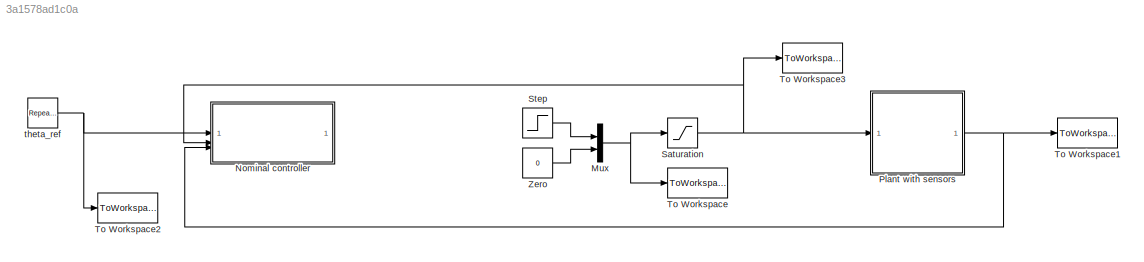
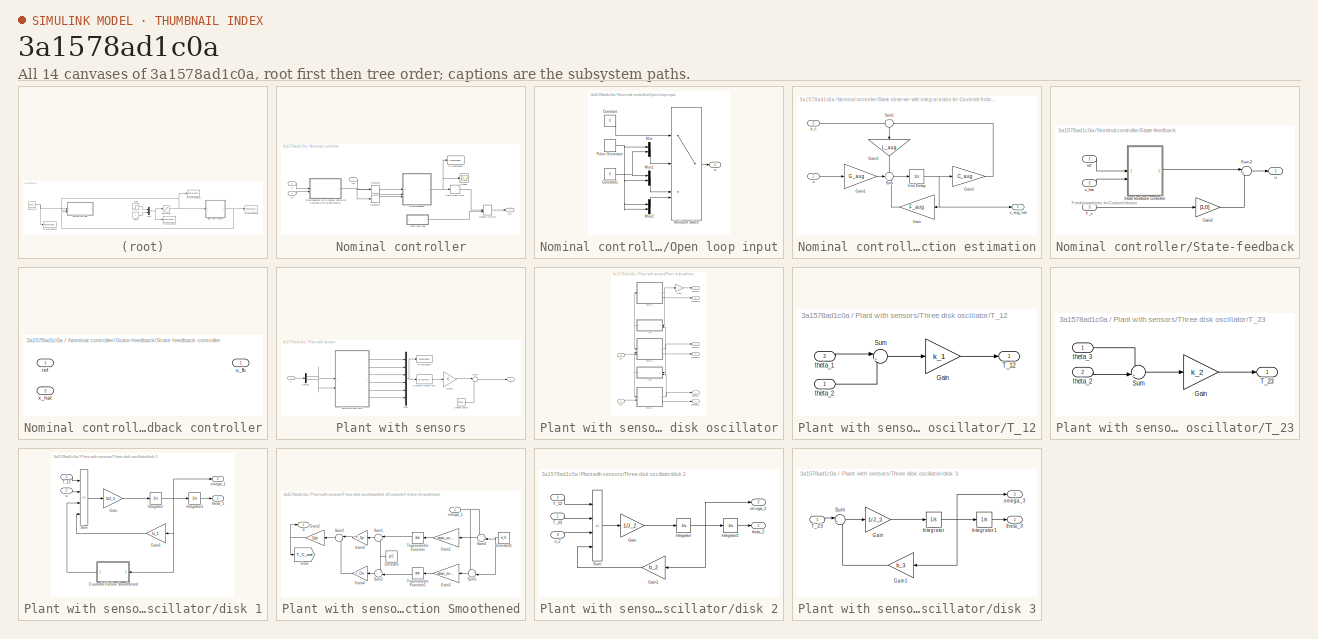
[diagram: thumbnail index - all 14 canvases of the model, root first then tree order]
MODEL slx_3a1578ad1c0a
KIND model
CONFIG AbsTol = auto
CONFIG EnableMultiTasking = off
CONFIG FixedStep = T_s
CONFIG MaxStep = auto
CONFIG MinStep = auto
CONFIG RelTol = 1e-8
CONFIG SampleTimeConstraint = Unconstrained
CONFIG SolverName = ode1be
CONFIG StartTime = 0.0
CONFIG StopTime = simTime
BLOCK [Mux] Mux
  DisplayOption = bar
  Inputs = 2
BLOCK [SubSystem] Nominal controller
  Commented = on
BLOCK [ManualSwitch] Nominal controller/Manual Switch
  CurrentSetting = 0
BLOCK [SubSystem] Nominal controller/Open loop input
BLOCK [Constant] Nominal controller/Open loop input/Constant
  Value = 3
BLOCK [Constant] Nominal controller/Open loop input/Constant1
  Value = 0
BLOCK [MultiPortSwitch] Nominal controller/Open loop input/Multiport Switch
  InputSameDT = off
  SaturateOnIntegerOverflow = off
BLOCK [Mux] Nominal controller/Open loop input/Mux
  DisplayOption = bar
  Inputs = 2
BLOCK [Mux] Nominal controller/Open loop input/Mux1
  DisplayOption = bar
  Inputs = 2
BLOCK [Mux] Nominal controller/Open loop input/Mux2
  DisplayOption = bar
  Inputs = 2
BLOCK [DiscretePulseGenerator] Nominal controller/Open loop input/Pulse Generator
  Period = 10
  PulseType = Time based
  PulseWidth = 5
BLOCK [Outport] Nominal controller/Open loop input/u
BLOCK [Scope] Nominal controller/Scope
  Floating = off
  NumInputPorts = 1
  ScopeSpecificationString = Simulink.scopes.TimeScopeBlockCfg('CurrentConfiguration', extmgr.ConfigurationSet(extmgr.Configuration('Core','General UI',true),extmgr.Configuration('Core','Source UI',true),extmgr.Configuration('Sources','WiredSimulink',true,'DataLoggingVariableName','ScopeData1'),extmgr.Configuration('Visuals','Time Domain',true,'SerializedDisplays',{struct('MinYLimReal','-1.51308','MaxYLimReal','1.51292','YLab...<+1479ch>
BLOCK [Selector] Nominal controller/Selector
  IndexOptions = Index vector (dialog)
  Indices = [1:6]
  InputPortWidth = 7
  OutputSizes = 1
BLOCK [Selector] Nominal controller/Selector1
  IndexOptions = Index vector (dialog)
  Indices = [7]
  InputPortWidth = 7
  OutputSizes = 1
BLOCK [SubSystem] Nominal controller/State observer with integral action for Coulomb friction estimation
BLOCK [Gain] Nominal controller/State observer with integral action for Coulomb friction estimation/Gain
  Gain = F_aug
  Multiplication = Matrix(K*u) (u vector)
BLOCK [Gain] Nominal controller/State observer with integral action for Coulomb friction estimation/Gain1
  Gain = G_aug
  Multiplication = Matrix(K*u) (u vector)
BLOCK [Gain] Nominal controller/State observer with integral action for Coulomb friction estimation/Gain2
  Gain = C_aug
  Multiplication = Matrix(K*u) (u vector)
BLOCK [Gain] Nominal controller/State observer with integral action for Coulomb friction estimation/Gain3
  Gain = L_aug
  Multiplication = Matrix(K*u) (u vector)
  NameLocation = left
BLOCK [Sum] Nominal controller/State observer with integral action for Coulomb friction estimation/Sum
  Inputs = +++
BLOCK [Sum] Nominal controller/State observer with integral action for Coulomb friction estimation/Sum1
  Inputs = +-
  NameLocation = left
BLOCK [UnitDelay] Nominal controller/State observer with integral action for Coulomb friction estimation/Unit Delay
  HasFrameUpgradeWarning = on
  SampleTime = T_s
BLOCK [Inport] Nominal controller/State observer with integral action for Coulomb friction estimation/u
BLOCK [Outport] Nominal controller/State observer with integral action for Coulomb friction estimation/x_aug_hat
  VectorParamsAs1DForOutWhenUnconnected = off
BLOCK [Inport] Nominal controller/State observer with integral action for Coulomb friction estimation/y_c
  Port = 2
BLOCK [SubSystem] Nominal controller/State-feedback
BLOCK [Gain] Nominal controller/State-feedback/Gain2
  Gain = [1;0]
  NameLocation = top
BLOCK [SubSystem] Nominal controller/State-feedback/State feedback controller
BLOCK [Inport] Nominal controller/State-feedback/State feedback controller/ref
BLOCK [Outport] Nominal controller/State-feedback/State feedback controller/u_fb
BLOCK [Inport] Nominal controller/State-feedback/State feedback controller/x_hat
  Port = 2
BLOCK [Sum] Nominal controller/State-feedback/Sum2
  Inputs = |+-
BLOCK [Inport] Nominal controller/State-feedback/T_c
  Port = 3
BLOCK [Inport] Nominal controller/State-feedback/ref
BLOCK [Outport] Nominal controller/State-feedback/u
  VectorParamsAs1DForOutWhenUnconnected = off
BLOCK [Inport] Nominal controller/State-feedback/x_hat
  Port = 2
BLOCK [ToWorkspace] Nominal controller/To Workspace
  FixptAsFi = on
  MaxDataPoints = inf
  SampleTime = T_s
  SaveFormat = Timeseries
  VariableName = u
BLOCK [ZeroOrderHold] Nominal controller/Zero-Order Hold
  SampleTime = T_s
BLOCK [Inport] Nominal controller/ref
BLOCK [Inport] Nominal controller/u
  Port = 2
BLOCK [Outport] Nominal controller/u_c
BLOCK [Inport] Nominal controller/y_c
  Port = 3
BLOCK [SubSystem] Plant with sensors
BLOCK [Demux] Plant with sensors/Demux
  Outputs = 2
BLOCK [DiscreteTransferFcn] Plant with sensors/Discrete Transfer Fcn
  Denominator = [1]
  InputPortMap = u0
  SampleTime = T_s
BLOCK [Gain] Plant with sensors/Gain2
  Gain = C
  Multiplication = Matrix(K*u) (u vector)
BLOCK [Mux] Plant with sensors/Mux
  DisplayOption = bar
  Inputs = 6
BLOCK [RandomNumber] Plant with sensors/Sensor noise
  Mean = zeros(3,1)
  SampleTime = T_s
  Variance = diag(sigma_meas^2)
BLOCK [Sum] Plant with sensors/Sum4
  Inputs = |++
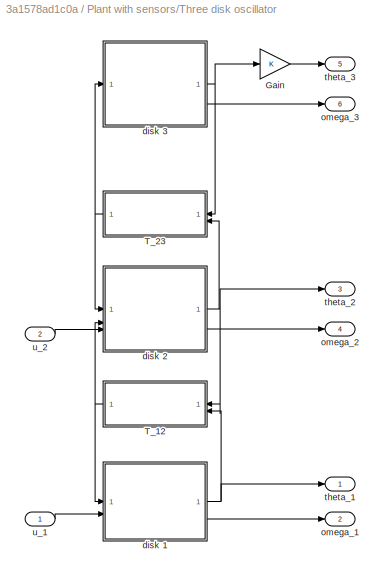
BLOCK [SubSystem] Plant with sensors/Three disk oscillator
BLOCK [Gain] Plant with sensors/Three disk oscillator/Gain
BLOCK [SubSystem] Plant with sensors/Three disk oscillator/T_12
BLOCK [Gain] Plant with sensors/Three disk oscillator/T_12/Gain
  Gain = k_1
BLOCK [Sum] Plant with sensors/Three disk oscillator/T_12/Sum
  Inputs = |+-
BLOCK [Outport] Plant with sensors/Three disk oscillator/T_12/T_12
  VectorParamsAs1DForOutWhenUnconnected = off
BLOCK [Inport] Plant with sensors/Three disk oscillator/T_12/theta_1
  Port = 2
BLOCK [Inport] Plant with sensors/Three disk oscillator/T_12/theta_2
BLOCK [SubSystem] Plant with sensors/Three disk oscillator/T_23
BLOCK [Gain] Plant with sensors/Three disk oscillator/T_23/Gain
  Gain = k_2
BLOCK [Sum] Plant with sensors/Three disk oscillator/T_23/Sum
  Inputs = -+|
BLOCK [Outport] Plant with sensors/Three disk oscillator/T_23/T_23
  VectorParamsAs1DForOutWhenUnconnected = off
BLOCK [Inport] Plant with sensors/Three disk oscillator/T_23/theta_2
  Port = 2
BLOCK [Inport] Plant with sensors/Three disk oscillator/T_23/theta_3
BLOCK [SubSystem] Plant with sensors/Three disk oscillator/disk 1
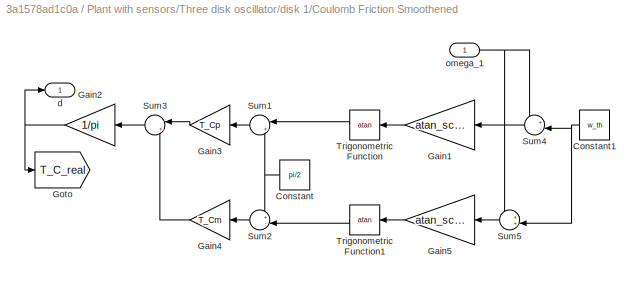
BLOCK [SubSystem] Plant with sensors/Three disk oscillator/disk 1/Coulomb Friction Smoothened
BLOCK [Constant] Plant with sensors/Three disk oscillator/disk 1/Coulomb Friction Smoothened/Constant
  Value = pi/2
BLOCK [Constant] Plant with sensors/Three disk oscillator/disk 1/Coulomb Friction Smoothened/Constant1
  Value = w_th
BLOCK [Gain] Plant with sensors/Three disk oscillator/disk 1/Coulomb Friction Smoothened/Gain1
  Gain = atan_scale
BLOCK [Gain] Plant with sensors/Three disk oscillator/disk 1/Coulomb Friction Smoothened/Gain2
  Gain = 1/pi
BLOCK [Gain] Plant with sensors/Three disk oscillator/disk 1/Coulomb Friction Smoothened/Gain3
  Gain = T_Cp
BLOCK [Gain] Plant with sensors/Three disk oscillator/disk 1/Coulomb Friction Smoothened/Gain4
  Gain = T_Cm
BLOCK [Gain] Plant with sensors/Three disk oscillator/disk 1/Coulomb Friction Smoothened/Gain5
  Gain = atan_scale
BLOCK [Goto] Plant with sensors/Three disk oscillator/disk 1/Coulomb Friction Smoothened/Goto
  GotoTag = T_C_real
  TagVisibility = global
BLOCK [Sum] Plant with sensors/Three disk oscillator/disk 1/Coulomb Friction Smoothened/Sum1
  Inputs = |++
BLOCK [Sum] Plant with sensors/Three disk oscillator/disk 1/Coulomb Friction Smoothened/Sum2
  Inputs = +-|
BLOCK [Sum] Plant with sensors/Three disk oscillator/disk 1/Coulomb Friction Smoothened/Sum3
  Inputs = |+-
BLOCK [Sum] Plant with sensors/Three disk oscillator/disk 1/Coulomb Friction Smoothened/Sum4
  Inputs = +-|
BLOCK [Sum] Plant with sensors/Three disk oscillator/disk 1/Coulomb Friction Smoothened/Sum5
  Inputs = ++|
BLOCK [Trigonometry] Plant with sensors/Three disk oscillator/disk 1/Coulomb Friction Smoothened/Trigonometric Function
  Operator = atan
BLOCK [Trigonometry] Plant with sensors/Three disk oscillator/disk 1/Coulomb Friction Smoothened/Trigonometric Function1
  Operator = atan
BLOCK [Outport] Plant with sensors/Three disk oscillator/disk 1/Coulomb Friction Smoothened/d
  VectorParamsAs1DForOutWhenUnconnected = off
BLOCK [Inport] Plant with sensors/Three disk oscillator/disk 1/Coulomb Friction Smoothened/omega_1
BLOCK [Gain] Plant with sensors/Three disk oscillator/disk 1/Gain
  Gain = 1/J_1
BLOCK [Gain] Plant with sensors/Three disk oscillator/disk 1/Gain1
  Gain = b_1
BLOCK [Integrator] Plant with sensors/Three disk oscillator/disk 1/Integrator
  InitialCondition = x_0(2)
BLOCK [Integrator] Plant with sensors/Three disk oscillator/disk 1/Integrator1
  InitialCondition = x_0(1)
BLOCK [Sum] Plant with sensors/Three disk oscillator/disk 1/Sum
  IconShape = rectangular
  Inputs = -+--
BLOCK [Inport] Plant with sensors/Three disk oscillator/disk 1/T_12
BLOCK [Outport] Plant with sensors/Three disk oscillator/disk 1/omega_1
  Port = 2
  VectorParamsAs1DForOutWhenUnconnected = off
BLOCK [Outport] Plant with sensors/Three disk oscillator/disk 1/theta_1
  VectorParamsAs1DForOutWhenUnconnected = off
BLOCK [Inport] Plant with sensors/Three disk oscillator/disk 1/u
  Port = 2
BLOCK [SubSystem] Plant with sensors/Three disk oscillator/disk 2
BLOCK [Gain] Plant with sensors/Three disk oscillator/disk 2/Gain
  Gain = 1/J_2
BLOCK [Gain] Plant with sensors/Three disk oscillator/disk 2/Gain1
  Gain = b_2
BLOCK [Integrator] Plant with sensors/Three disk oscillator/disk 2/Integrator
  InitialCondition = x_0(4)
BLOCK [Integrator] Plant with sensors/Three disk oscillator/disk 2/Integrator1
  InitialCondition = x_0(3)
BLOCK [Sum] Plant with sensors/Three disk oscillator/disk 2/Sum
  IconShape = rectangular
  Inputs = +-+-
BLOCK [Inport] Plant with sensors/Three disk oscillator/disk 2/T_12
  Port = 2
BLOCK [Inport] Plant with sensors/Three disk oscillator/disk 2/T_23
BLOCK [Outport] Plant with sensors/Three disk oscillator/disk 2/omega_2
  Port = 2
  VectorParamsAs1DForOutWhenUnconnected = off
BLOCK [Outport] Plant with sensors/Three disk oscillator/disk 2/theta_2
  VectorParamsAs1DForOutWhenUnconnected = off
BLOCK [Inport] Plant with sensors/Three disk oscillator/disk 2/u_2
  Port = 3
BLOCK [SubSystem] Plant with sensors/Three disk oscillator/disk 3
BLOCK [Gain] Plant with sensors/Three disk oscillator/disk 3/Gain
  Gain = 1/J_3
BLOCK [Gain] Plant with sensors/Three disk oscillator/disk 3/Gain1
  Gain = b_3
BLOCK [Integrator] Plant with sensors/Three disk oscillator/disk 3/Integrator
  InitialCondition = x_0(6)
BLOCK [Integrator] Plant with sensors/Three disk oscillator/disk 3/Integrator1
  InitialCondition = x_0(5)
BLOCK [Sum] Plant with sensors/Three disk oscillator/disk 3/Sum
  Inputs = |+-
BLOCK [Inport] Plant with sensors/Three disk oscillator/disk 3/T_23
BLOCK [Outport] Plant with sensors/Three disk oscillator/disk 3/omega_3
  Port = 2
  VectorParamsAs1DForOutWhenUnconnected = off
BLOCK [Outport] Plant with sensors/Three disk oscillator/disk 3/theta_3
  VectorParamsAs1DForOutWhenUnconnected = off
BLOCK [Outport] Plant with sensors/Three disk oscillator/omega_1
  Port = 2
  VectorParamsAs1DForOutWhenUnconnected = off
BLOCK [Outport] Plant with sensors/Three disk oscillator/omega_2
  Port = 4
  VectorParamsAs1DForOutWhenUnconnected = off
BLOCK [Outport] Plant with sensors/Three disk oscillator/omega_3
  Port = 6
  VectorParamsAs1DForOutWhenUnconnected = off
BLOCK [Outport] Plant with sensors/Three disk oscillator/theta_1
  VectorParamsAs1DForOutWhenUnconnected = off
BLOCK [Outport] Plant with sensors/Three disk oscillator/theta_2
  Port = 3
  VectorParamsAs1DForOutWhenUnconnected = off
BLOCK [Outport] Plant with sensors/Three disk oscillator/theta_3
  Port = 5
  VectorParamsAs1DForOutWhenUnconnected = off
BLOCK [Inport] Plant with sensors/Three disk oscillator/u_1
BLOCK [Inport] Plant with sensors/Three disk oscillator/u_2
  Port = 2
BLOCK [ToWorkspace] Plant with sensors/To Workspace
  FixptAsFi = on
  MaxDataPoints = inf
  SampleTime = T_s
  SaveFormat = Timeseries
  VariableName = x_real
BLOCK [Inport] Plant with sensors/u
BLOCK [Outport] Plant with sensors/y
  VectorParamsAs1DForOutWhenUnconnected = off
BLOCK [Saturate] Saturation
  LowerLimit = -2
  UpperLimit = 2
BLOCK [Step] Step
  SampleTime = T_s
  Time = 0.0001
BLOCK [ToWorkspace] To Workspace
  FixptAsFi = on
  MaxDataPoints = inf
  SampleTime = T_s
  VariableName = u
BLOCK [ToWorkspace] To Workspace1
  FixptAsFi = on
  MaxDataPoints = inf
  SampleTime = T_s
  VariableName = y
BLOCK [ToWorkspace] To Workspace2
  FixptAsFi = on
  MaxDataPoints = inf
  SampleTime = T_s
  VariableName = theta_ref
BLOCK [ToWorkspace] To Workspace3
  FixptAsFi = on
  MaxDataPoints = inf
  SampleTime = T_s
  VariableName = u_sat
BLOCK [Constant] Zero
  OutDataTypeStr = Inherit: Inherit via back propagation
  Value = 0
BLOCK [Reference] theta_ref  REF=simulink/Sources/Repeating
Sequence
Stair
  SourceBlock = simulink/Sources/Repeating\nSequence\nStair
  SourceType = Repeating Sequence Stair
ANNOTATION Nominal controller/State-feedback: Feed-forward term for Coulomb friction
NET Mux:1 -> Saturation:1, To Workspace:1
LINE Nominal controller/Manual Switch:1 -> Nominal controller/u_c:1
NET Nominal controller/Open loop input/Constant1:1 -> Nominal controller/Open loop input/Mux1:1, Nominal controller/Open loop input/Mux:2
LINE Nominal controller/Open loop input/Constant:1 -> Nominal controller/Open loop input/Multiport Switch:1
LINE Nominal controller/Open loop input/Multiport Switch:1 -> Nominal controller/Open loop input/u:1
LINE Nominal controller/Open loop input/Mux1:1 -> Nominal controller/Open loop input/Multiport Switch:3
LINE Nominal controller/Open loop input/Mux2:1 -> Nominal controller/Open loop input/Multiport Switch:4
LINE Nominal controller/Open loop input/Mux:1 -> Nominal controller/Open loop input/Multiport Switch:2
NET Nominal controller/Open loop input/Pulse Generator:1 -> Nominal controller/Open loop input/Mux1:2, Nominal controller/Open loop input/Mux2:1, Nominal controller/Open loop input/Mux2:2, Nominal controller/Open loop input/Mux:1
LINE Nominal controller/Open loop input:1 -> Nominal controller/Manual Switch:2
LINE Nominal controller/Selector1:1 -> Nominal controller/State-feedback:3
LINE Nominal controller/Selector:1 -> Nominal controller/State-feedback:2
LINE Nominal controller/State observer with integral action for Coulomb friction estimation/Gain1:1 -> Nominal controller/State observer with integral action for Coulomb friction estimation/Sum:2
LINE Nominal controller/State observer with integral action for Coulomb friction estimation/Gain2:1 -> Nominal controller/State observer with integral action for Coulomb friction estimation/Sum1:2
LINE Nominal controller/State observer with integral action for Coulomb friction estimation/Gain3:1 -> Nominal controller/State observer with integral action for Coulomb friction estimation/Sum:1
LINE Nominal controller/State observer with integral action for Coulomb friction estimation/Gain:1 -> Nominal controller/State observer with integral action for Coulomb friction estimation/Sum:3
LINE Nominal controller/State observer with integral action for Coulomb friction estimation/Sum1:1 -> Nominal controller/State observer with integral action for Coulomb friction estimation/Gain3:1
LINE Nominal controller/State observer with integral action for Coulomb friction estimation/Sum:1 -> Nominal controller/State observer with integral action for Coulomb friction estimation/Unit Delay:1
NET Nominal controller/State observer with integral action for Coulomb friction estimation/Unit Delay:1 -> Nominal controller/State observer with integral action for Coulomb friction estimation/Gain2:1, Nominal controller/State observer with integral action for Coulomb friction estimation/Gain:1, Nominal controller/State observer with integral action for Coulomb friction estimation/x_aug_hat:1
LINE Nominal controller/State observer with integral action for Coulomb friction estimation/u:1 -> Nominal controller/State observer with integral action for Coulomb friction estimation/Gain1:1
LINE Nominal controller/State observer with integral action for Coulomb friction estimation/y_c:1 -> Nominal controller/State observer with integral action for Coulomb friction estimation/Sum1:1
NET Nominal controller/State observer with integral action for Coulomb friction estimation:1 -> Nominal controller/Selector1:1, Nominal controller/Selector:1
LINE Nominal controller/State-feedback/Gain2:1 -> Nominal controller/State-feedback/Sum2:2
LINE Nominal controller/State-feedback/State feedback controller:1 -> Nominal controller/State-feedback/Sum2:1
LINE Nominal controller/State-feedback/Sum2:1 -> Nominal controller/State-feedback/u:1
LINE Nominal controller/State-feedback/T_c:1 -> Nominal controller/State-feedback/Gain2:1
LINE Nominal controller/State-feedback/ref:1 -> Nominal controller/State-feedback/State feedback controller:1
LINE Nominal controller/State-feedback/x_hat:1 -> Nominal controller/State-feedback/State feedback controller:2
NET Nominal controller/State-feedback:1 -> Nominal controller/Scope:1, Nominal controller/To Workspace:1, Nominal controller/Zero-Order Hold:1
LINE Nominal controller/Zero-Order Hold:1 -> Nominal controller/Manual Switch:1
LINE Nominal controller/ref:1 -> Nominal controller/State-feedback:1
LINE Nominal controller/u:1 -> Nominal controller/State observer with integral action for Coulomb friction estimation:1
LINE Nominal controller/y_c:1 -> Nominal controller/State observer with integral action for Coulomb friction estimation:2
LINE Plant with sensors/Demux:1 -> Plant with sensors/Three disk oscillator:1
LINE Plant with sensors/Demux:2 -> Plant with sensors/Three disk oscillator:2
LINE Plant with sensors/Discrete Transfer Fcn:1 -> Plant with sensors/Gain2:1
LINE Plant with sensors/Gain2:1 -> Plant with sensors/Sum4:1
NET Plant with sensors/Mux:1 -> Plant with sensors/Discrete Transfer Fcn:1, Plant with sensors/To Workspace:1
LINE Plant with sensors/Sensor noise:1 -> Plant with sensors/Sum4:2
LINE Plant with sensors/Sum4:1 -> Plant with sensors/y:1
LINE Plant with sensors/Three disk oscillator/Gain:1 -> Plant with sensors/Three disk oscillator/theta_3:1
LINE Plant with sensors/Three disk oscillator/T_12/Gain:1 -> Plant with sensors/Three disk oscillator/T_12/T_12:1
LINE Plant with sensors/Three disk oscillator/T_12/Sum:1 -> Plant with sensors/Three disk oscillator/T_12/Gain:1
LINE Plant with sensors/Three disk oscillator/T_12/theta_1:1 -> Plant with sensors/Three disk oscillator/T_12/Sum:1
LINE Plant with sensors/Three disk oscillator/T_12/theta_2:1 -> Plant with sensors/Three disk oscillator/T_12/Sum:2
NET Plant with sensors/Three disk oscillator/T_12:1 -> Plant with sensors/Three disk oscillator/disk 1:1, Plant with sensors/Three disk oscillator/disk 2:2
LINE Plant with sensors/Three disk oscillator/T_23/Gain:1 -> Plant with sensors/Three disk oscillator/T_23/T_23:1
LINE Plant with sensors/Three disk oscillator/T_23/Sum:1 -> Plant with sensors/Three disk oscillator/T_23/Gain:1
LINE Plant with sensors/Three disk oscillator/T_23/theta_2:1 -> Plant with sensors/Three disk oscillator/T_23/Sum:2
LINE Plant with sensors/Three disk oscillator/T_23/theta_3:1 -> Plant with sensors/Three disk oscillator/T_23/Sum:1
NET Plant with sensors/Three disk oscillator/T_23:1 -> Plant with sensors/Three disk oscillator/disk 2:1, Plant with sensors/Three disk oscillator/disk 3:1
NET Plant with sensors/Three disk oscillator/disk 1/Coulomb Friction Smoothened/Constant1:1 -> Plant with sensors/Three disk oscillator/disk 1/Coulomb Friction Smoothened/Sum4:2, Plant with sensors/Three disk oscillator/disk 1/Coulomb Friction Smoothened/Sum5:2
NET Plant with sensors/Three disk oscillator/disk 1/Coulomb Friction Smoothened/Constant:1 -> Plant with sensors/Three disk oscillator/disk 1/Coulomb Friction Smoothened/Sum1:2, Plant with sensors/Three disk oscillator/disk 1/Coulomb Friction Smoothened/Sum2:1
LINE Plant with sensors/Three disk oscillator/disk 1/Coulomb Friction Smoothened/Gain1:1 -> Plant with sensors/Three disk oscillator/disk 1/Coulomb Friction Smoothened/Trigonometric Function:1
NET Plant with sensors/Three disk oscillator/disk 1/Coulomb Friction Smoothened/Gain2:1 -> Plant with sensors/Three disk oscillator/disk 1/Coulomb Friction Smoothened/Goto:1, Plant with sensors/Three disk oscillator/disk 1/Coulomb Friction Smoothened/d:1
LINE Plant with sensors/Three disk oscillator/disk 1/Coulomb Friction Smoothened/Gain3:1 -> Plant with sensors/Three disk oscillator/disk 1/Coulomb Friction Smoothened/Sum3:1
LINE Plant with sensors/Three disk oscillator/disk 1/Coulomb Friction Smoothened/Gain4:1 -> Plant with sensors/Three disk oscillator/disk 1/Coulomb Friction Smoothened/Sum3:2
LINE Plant with sensors/Three disk oscillator/disk 1/Coulomb Friction Smoothened/Gain5:1 -> Plant with sensors/Three disk oscillator/disk 1/Coulomb Friction Smoothened/Trigonometric Function1:1
LINE Plant with sensors/Three disk oscillator/disk 1/Coulomb Friction Smoothened/Sum1:1 -> Plant with sensors/Three disk oscillator/disk 1/Coulomb Friction Smoothened/Gain3:1
LINE Plant with sensors/Three disk oscillator/disk 1/Coulomb Friction Smoothened/Sum2:1 -> Plant with sensors/Three disk oscillator/disk 1/Coulomb Friction Smoothened/Gain4:1
LINE Plant with sensors/Three disk oscillator/disk 1/Coulomb Friction Smoothened/Sum3:1 -> Plant with sensors/Three disk oscillator/disk 1/Coulomb Friction Smoothened/Gain2:1
LINE Plant with sensors/Three disk oscillator/disk 1/Coulomb Friction Smoothened/Sum4:1 -> Plant with sensors/Three disk oscillator/disk 1/Coulomb Friction Smoothened/Gain1:1
LINE Plant with sensors/Three disk oscillator/disk 1/Coulomb Friction Smoothened/Sum5:1 -> Plant with sensors/Three disk oscillator/disk 1/Coulomb Friction Smoothened/Gain5:1
LINE Plant with sensors/Three disk oscillator/disk 1/Coulomb Friction Smoothened/Trigonometric Function1:1 -> Plant with sensors/Three disk oscillator/disk 1/Coulomb Friction Smoothened/Sum2:2
LINE Plant with sensors/Three disk oscillator/disk 1/Coulomb Friction Smoothened/Trigonometric Function:1 -> Plant with sensors/Three disk oscillator/disk 1/Coulomb Friction Smoothened/Sum1:1
NET Plant with sensors/Three disk oscillator/disk 1/Coulomb Friction Smoothened/omega_1:1 -> Plant with sensors/Three disk oscillator/disk 1/Coulomb Friction Smoothened/Sum4:1, Plant with sensors/Three disk oscillator/disk 1/Coulomb Friction Smoothened/Sum5:1
LINE Plant with sensors/Three disk oscillator/disk 1/Coulomb Friction Smoothened:1 -> Plant with sensors/Three disk oscillator/disk 1/Sum:3
LINE Plant with sensors/Three disk oscillator/disk 1/Gain1:1 -> Plant with sensors/Three disk oscillator/disk 1/Sum:4
LINE Plant with sensors/Three disk oscillator/disk 1/Gain:1 -> Plant with sensors/Three disk oscillator/disk 1/Integrator:1
LINE Plant with sensors/Three disk oscillator/disk 1/Integrator1:1 -> Plant with sensors/Three disk oscillator/disk 1/theta_1:1
NET Plant with sensors/Three disk oscillator/disk 1/Integrator:1 -> Plant with sensors/Three disk oscillator/disk 1/Coulomb Friction Smoothened:1, Plant with sensors/Three disk oscillator/disk 1/Gain1:1, Plant with sensors/Three disk oscillator/disk 1/Integrator1:1, Plant with sensors/Three disk oscillator/disk 1/omega_1:1
LINE Plant with sensors/Three disk oscillator/disk 1/Sum:1 -> Plant with sensors/Three disk oscillator/disk 1/Gain:1
LINE Plant with sensors/Three disk oscillator/disk 1/T_12:1 -> Plant with sensors/Three disk oscillator/disk 1/Sum:1
LINE Plant with sensors/Three disk oscillator/disk 1/u:1 -> Plant with sensors/Three disk oscillator/disk 1/Sum:2
NET Plant with sensors/Three disk oscillator/disk 1:1 -> Plant with sensors/Three disk oscillator/T_12:2, Plant with sensors/Three disk oscillator/theta_1:1
LINE Plant with sensors/Three disk oscillator/disk 1:2 -> Plant with sensors/Three disk oscillator/omega_1:1
LINE Plant with sensors/Three disk oscillator/disk 2/Gain1:1 -> Plant with sensors/Three disk oscillator/disk 2/Sum:4
LINE Plant with sensors/Three disk oscillator/disk 2/Gain:1 -> Plant with sensors/Three disk oscillator/disk 2/Integrator:1
LINE Plant with sensors/Three disk oscillator/disk 2/Integrator1:1 -> Plant with sensors/Three disk oscillator/disk 2/theta_2:1
NET Plant with sensors/Three disk oscillator/disk 2/Integrator:1 -> Plant with sensors/Three disk oscillator/disk 2/Gain1:1, Plant with sensors/Three disk oscillator/disk 2/Integrator1:1, Plant with sensors/Three disk oscillator/disk 2/omega_2:1
LINE Plant with sensors/Three disk oscillator/disk 2/Sum:1 -> Plant with sensors/Three disk oscillator/disk 2/Gain:1
LINE Plant with sensors/Three disk oscillator/disk 2/T_12:1 -> Plant with sensors/Three disk oscillator/disk 2/Sum:1
LINE Plant with sensors/Three disk oscillator/disk 2/T_23:1 -> Plant with sensors/Three disk oscillator/disk 2/Sum:2
LINE Plant with sensors/Three disk oscillator/disk 2/u_2:1 -> Plant with sensors/Three disk oscillator/disk 2/Sum:3
NET Plant with sensors/Three disk oscillator/disk 2:1 -> Plant with sensors/Three disk oscillator/T_12:1, Plant with sensors/Three disk oscillator/T_23:2, Plant with sensors/Three disk oscillator/theta_2:1
LINE Plant with sensors/Three disk oscillator/disk 2:2 -> Plant with sensors/Three disk oscillator/omega_2:1
LINE Plant with sensors/Three disk oscillator/disk 3/Gain1:1 -> Plant with sensors/Three disk oscillator/disk 3/Sum:2
LINE Plant with sensors/Three disk oscillator/disk 3/Gain:1 -> Plant with sensors/Three disk oscillator/disk 3/Integrator:1
LINE Plant with sensors/Three disk oscillator/disk 3/Integrator1:1 -> Plant with sensors/Three disk oscillator/disk 3/theta_3:1
NET Plant with sensors/Three disk oscillator/disk 3/Integrator:1 -> Plant with sensors/Three disk oscillator/disk 3/Gain1:1, Plant with sensors/Three disk oscillator/disk 3/Integrator1:1, Plant with sensors/Three disk oscillator/disk 3/omega_3:1
LINE Plant with sensors/Three disk oscillator/disk 3/Sum:1 -> Plant with sensors/Three disk oscillator/disk 3/Gain:1
LINE Plant with sensors/Three disk oscillator/disk 3/T_23:1 -> Plant with sensors/Three disk oscillator/disk 3/Sum:1
NET Plant with sensors/Three disk oscillator/disk 3:1 -> Plant with sensors/Three disk oscillator/Gain:1, Plant with sensors/Three disk oscillator/T_23:1
LINE Plant with sensors/Three disk oscillator/disk 3:2 -> Plant with sensors/Three disk oscillator/omega_3:1
LINE Plant with sensors/Three disk oscillator/u_1:1 -> Plant with sensors/Three disk oscillator/disk 1:2
LINE Plant with sensors/Three disk oscillator/u_2:1 -> Plant with sensors/Three disk oscillator/disk 2:3
LINE Plant with sensors/Three disk oscillator:1 -> Plant with sensors/Mux:1
LINE Plant with sensors/Three disk oscillator:2 -> Plant with sensors/Mux:2
LINE Plant with sensors/Three disk oscillator:3 -> Plant with sensors/Mux:3
LINE Plant with sensors/Three disk oscillator:4 -> Plant with sensors/Mux:4
LINE Plant with sensors/Three disk oscillator:5 -> Plant with sensors/Mux:5
LINE Plant with sensors/Three disk oscillator:6 -> Plant with sensors/Mux:6
LINE Plant with sensors/u:1 -> Plant with sensors/Demux:1
NET Plant with sensors:1 -> Nominal controller:3, To Workspace1:1
NET Saturation:1 -> Nominal controller:2, Plant with sensors:1, To Workspace3:1
LINE Step:1 -> Mux:1
LINE Zero:1 -> Mux:2
NET theta_ref:1 -> Nominal controller:1, To Workspace2:1
note: NET lines group one-source signal fan-out (src -> all destinations, sorted); 1:1 wires keep LINE
